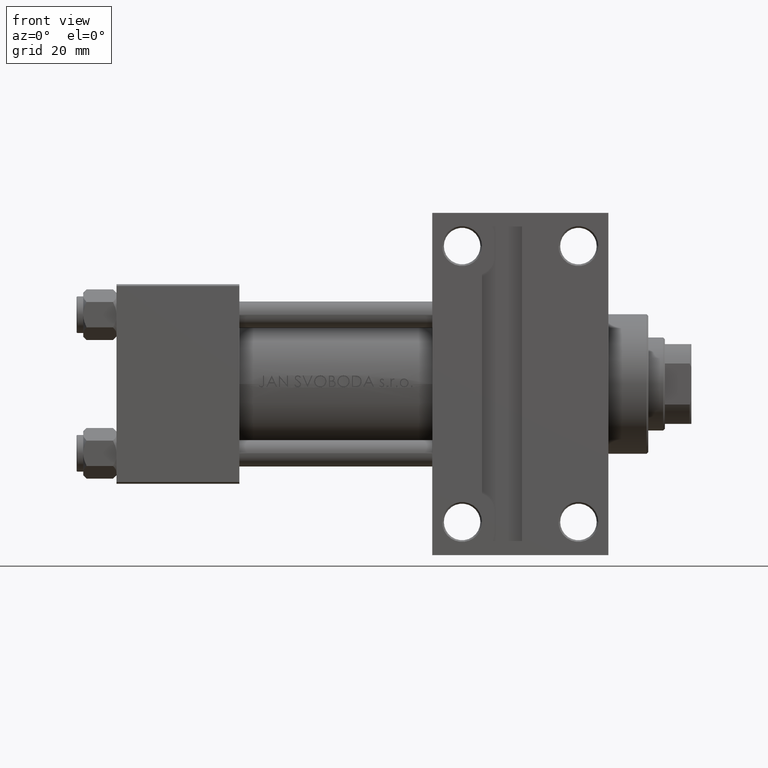
[diagram: clean part render]
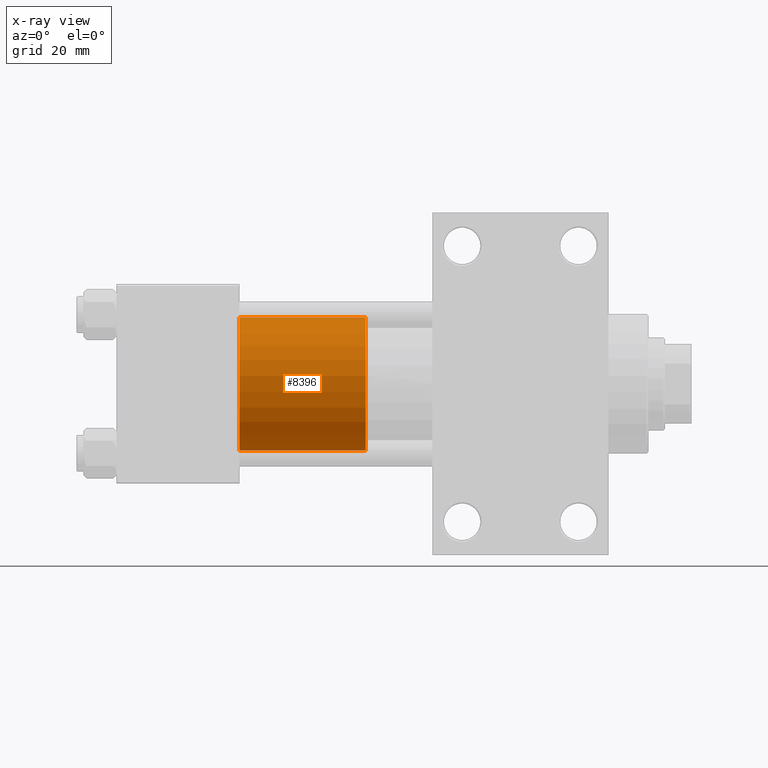
[diagram: x-ray — body ghosted, one internal face saturated and labeled with its STEP entity id]
A machine part, front view, then the same camera in x-ray: the body is ghosted and one INTERNAL B-rep face — a face not visible from any outside direction — is saturated and labeled: STEP entity #8396.
In plain terms, the highlighted cylindrical surface (partial cylindrical patch) has radius 20 mm, axis along (-1, 0, 0).
Its self-contained STEP definition (entity closure, byte-faithful):
#2677 = CIRCLE ( 'NONE', #43597, 20.00000000000000000 ) ;
#2971 = VECTOR ( 'NONE', #41248, 1000.000000000000000 ) ;
#4098 = EDGE_CURVE ( 'NONE', #33289, #27420, #25921, .T. ) ;
#6667 = DIRECTION ( 'NONE',  ( -0.000000000000000000, -0.000000000000000000, -1.000000000000000000 ) ) ;
#7672 = ORIENTED_EDGE ( 'NONE', *, *, #45974, .F. ) ;
#8396 = ADVANCED_FACE ( 'NONE', ( #33301 ), #28310, .T. ) ;
#9530 = DIRECTION ( 'NONE',  ( -0.000000000000000000, -0.000000000000000000, -1.000000000000000000 ) ) ;
#11883 = CIRCLE ( 'NONE', #22143, 20.00000000000000000 ) ;
#13649 = CARTESIAN_POINT ( 'NONE',  ( 20.00000000000000000, 2.449293598294706513E-15, 38.00000000000000000 ) ) ;
#21099 = ORIENTED_EDGE ( 'NONE', *, *, #31420, .F. ) ;
#21387 = CARTESIAN_POINT ( 'NONE',  ( 0.000000000000000000, 0.000000000000000000, 38.00000000000000000 ) ) ;
#22143 = AXIS2_PLACEMENT_3D ( 'NONE', #37213, #33017, #25401 ) ;
#23393 = AXIS2_PLACEMENT_3D ( 'NONE', #21387, #9530, #24608 ) ;
#24608 = DIRECTION ( 'NONE',  ( -1.000000000000000000, 0.000000000000000000, 0.000000000000000000 ) ) ;
#25057 = CARTESIAN_POINT ( 'NONE',  ( -20.00000000000000000, 0.000000000000000000, 38.00000000000000000 ) ) ;
#25401 = DIRECTION ( 'NONE',  ( 1.000000000000000000, 0.000000000000000000, 0.000000000000000000 ) ) ;
#25921 = LINE ( 'NONE', #40933, #48495 ) ;
#27420 = VERTEX_POINT ( 'NONE', #40609 ) ;
#28310 = CYLINDRICAL_SURFACE ( 'NONE', #23393, 20.00000000000000000 ) ;
#28332 = VERTEX_POINT ( 'NONE', #33508 ) ;
#30639 = LINE ( 'NONE', #33599, #2971 ) ;
#31420 = EDGE_CURVE ( 'NONE', #32240, #28332, #30639, .T. ) ;
#32240 = VERTEX_POINT ( 'NONE', #25057 ) ;
#33017 = DIRECTION ( 'NONE',  ( 0.000000000000000000, 0.000000000000000000, 1.000000000000000000 ) ) ;
#33289 = VERTEX_POINT ( 'NONE', #13649 ) ;
#33301 = FACE_OUTER_BOUND ( 'NONE', #33911, .T. ) ;
#33508 = CARTESIAN_POINT ( 'NONE',  ( -20.00000000000000000, 0.000000000000000000, 0.000000000000000000 ) ) ;
#33599 = CARTESIAN_POINT ( 'NONE',  ( -20.00000000000000000, 0.000000000000000000, 38.00000000000000000 ) ) ;
#33911 = EDGE_LOOP ( 'NONE', ( #7672, #36465, #43213, #21099 ) ) ;
#36465 = ORIENTED_EDGE ( 'NONE', *, *, #4098, .T. ) ;
#36649 = CARTESIAN_POINT ( 'NONE',  ( 0.000000000000000000, 0.000000000000000000, 0.000000000000000000 ) ) ;
#36882 = DIRECTION ( 'NONE',  ( 1.000000000000000000, 0.000000000000000000, 0.000000000000000000 ) ) ;
#37213 = CARTESIAN_POINT ( 'NONE',  ( 0.000000000000000000, 0.000000000000000000, 38.00000000000000000 ) ) ;
#40557 = EDGE_CURVE ( 'NONE', #27420, #28332, #2677, .T. ) ;
#40609 = CARTESIAN_POINT ( 'NONE',  ( 20.00000000000000000, 2.449293598294706513E-15, 0.000000000000000000 ) ) ;
#40933 = CARTESIAN_POINT ( 'NONE',  ( 20.00000000000000000, 2.449293598294706513E-15, 38.00000000000000000 ) ) ;
#41248 = DIRECTION ( 'NONE',  ( -0.000000000000000000, -0.000000000000000000, -1.000000000000000000 ) ) ;
#43213 = ORIENTED_EDGE ( 'NONE', *, *, #40557, .T. ) ;
#43597 = AXIS2_PLACEMENT_3D ( 'NONE', #36649, #48461, #36882 ) ;
#45974 = EDGE_CURVE ( 'NONE', #33289, #32240, #11883, .T. ) ;
#48461 = DIRECTION ( 'NONE',  ( 0.000000000000000000, 0.000000000000000000, 1.000000000000000000 ) ) ;
#48495 = VECTOR ( 'NONE', #6667, 1000.000000000000000 ) ;